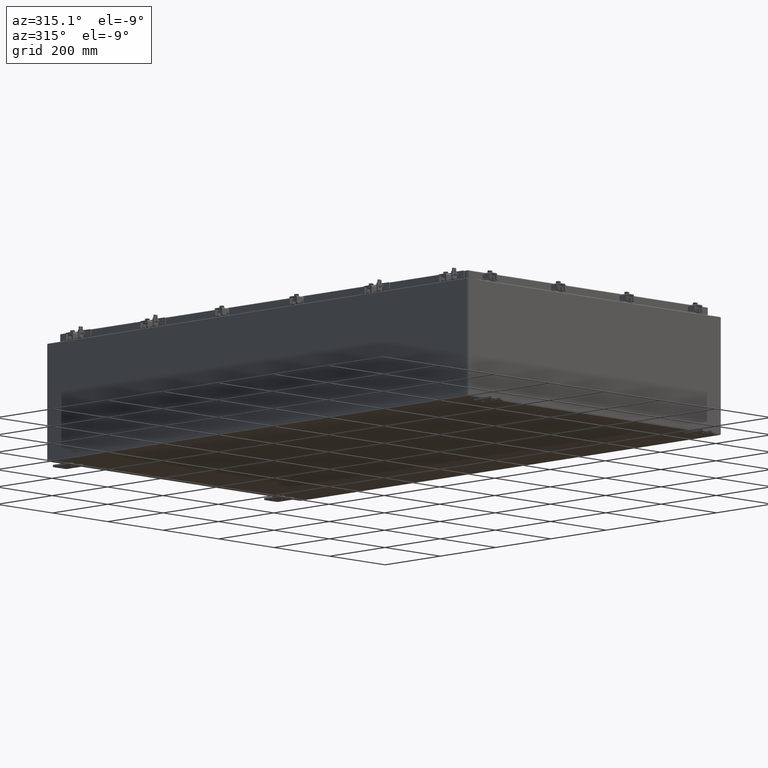
[diagram: clean part render]
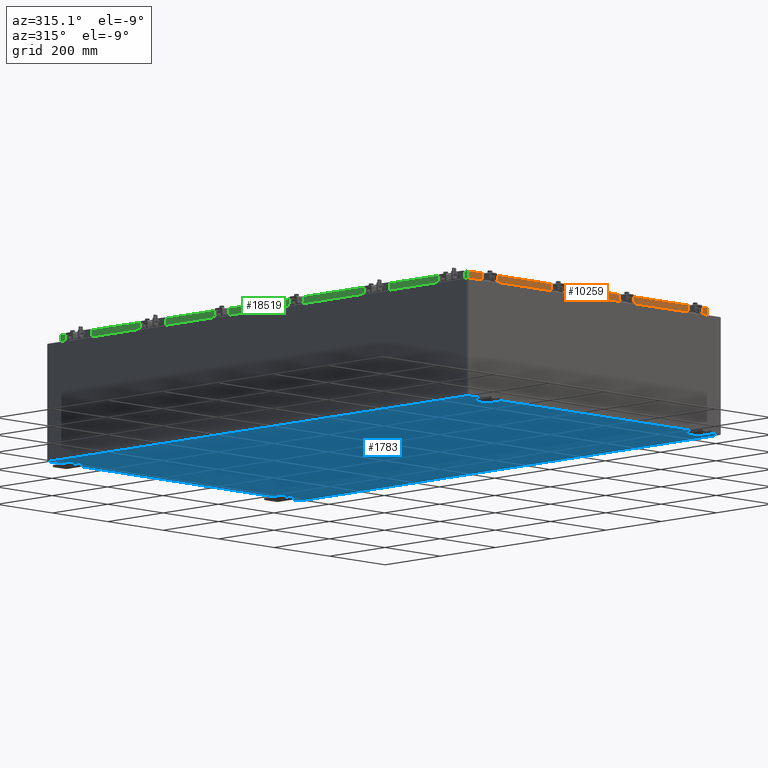
[diagram: same view with three faces highlighted in distinct colors, each labeled with its STEP entity id]
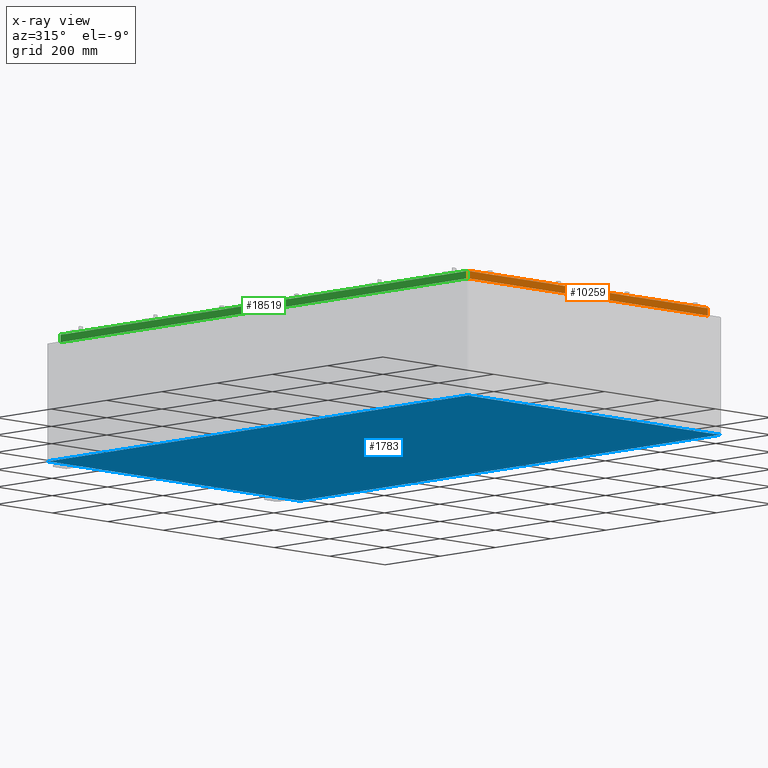
[diagram: x-ray of the same camera — body ghosted, the three highlighted faces saturated]
A machine part, auxiliary view with three faces highlighted in distinct colors.
The next image is the same camera in x-ray (body ghosted, the three faces saturated) — at least one of them is partly hidden behind the body in this view.
Their STEP definitions:

[orange] entity #10259 — the highlighted planar face has unit normal (-0, 1, -0).
#173 = VERTEX_POINT ( 'NONE', #9659 ) ;
#225 = EDGE_LOOP ( 'NONE', ( #10583, #16335, #232, #18403, #7157, #8014 ) ) ;
#232 = ORIENTED_EDGE ( 'NONE', *, *, #1973, .F. ) ;
#751 = EDGE_CURVE ( 'NONE', #1170, #173, #25907, .T. ) ;
#1104 = CARTESIAN_POINT ( 'NONE',  ( 17.07800000000000700, -29.09400000000000800, -0.8499999999999996400 ) ) ;
#1170 = VERTEX_POINT ( 'NONE', #14729 ) ;
#1832 = CARTESIAN_POINT ( 'NONE',  ( 2.033440117909724100E-029, -29.09400000000000500, 1.642858579540497200E-013 ) ) ;
#1973 = EDGE_CURVE ( 'NONE', #173, #26016, #26518, .T. ) ;
#2530 = VECTOR ( 'NONE', #3410, 39.37007874015748100 ) ;
#2819 = EDGE_CURVE ( 'NONE', #22099, #26016, #12813, .T. ) ;
#3410 = DIRECTION ( 'NONE',  ( -1.000000000000000000, -0.0000000000000000000, 1.239713195391617100E-016 ) ) ;
#4038 = EDGE_CURVE ( 'NONE', #21383, #11064, #4432, .T. ) ;
#4432 = LINE ( 'NONE', #27315, #9432 ) ;
#7116 = DIRECTION ( 'NONE',  ( -1.000000000000000000, 0.0000000000000000000, 0.0000000000000000000 ) ) ;
#7157 = ORIENTED_EDGE ( 'NONE', *, *, #9989, .F. ) ;
#8014 = ORIENTED_EDGE ( 'NONE', *, *, #4038, .F. ) ;
#9432 = VECTOR ( 'NONE', #12394, 39.37007874015748100 ) ;
#9659 = CARTESIAN_POINT ( 'NONE',  ( -16.23915786437626700, -29.09400000000000800, -0.8499999999999972000 ) ) ;
#9989 = EDGE_CURVE ( 'NONE', #11064, #1170, #20218, .T. ) ;
#10166 = CARTESIAN_POINT ( 'NONE',  ( -16.98915786437626400, -29.09400000000000500, 1.642858579540497200E-013 ) ) ;
#10259 = ADVANCED_FACE ( 'NONE', ( #19212 ), #23174, .F. ) ;
#10396 = DIRECTION ( 'NONE',  ( -6.989207801985715000E-031, 1.000000000000000000, -5.637761885544721100E-015 ) ) ;
#10583 = ORIENTED_EDGE ( 'NONE', *, *, #23637, .F. ) ;
#11064 = VERTEX_POINT ( 'NONE', #23510 ) ;
#11163 = CARTESIAN_POINT ( 'NONE',  ( -16.98915786437626400, -29.09400000000000500, -0.08769999999999547600 ) ) ;
#11469 = VECTOR ( 'NONE', #16587, 39.37007874015748100 ) ;
#11574 = AXIS2_PLACEMENT_3D ( 'NONE', #1832, #10396, #25302 ) ;
#11738 = VECTOR ( 'NONE', #11813, 39.37007874015748100 ) ;
#11813 = DIRECTION ( 'NONE',  ( 1.000000000000000000, 6.989207801985715000E-031, -3.922586267643549100E-045 ) ) ;
#12394 = DIRECTION ( 'NONE',  ( -0.0000000000000000000, -5.637761885544721800E-015, -1.000000000000000000 ) ) ;
#12813 = LINE ( 'NONE', #10166, #11469 ) ;
#14561 = VECTOR ( 'NONE', #7116, 39.37007874015748100 ) ;
#14729 = CARTESIAN_POINT ( 'NONE',  ( 16.23915786437626700, -29.09400000000000800, -0.8499999999999972000 ) ) ;
#15769 = CARTESIAN_POINT ( 'NONE',  ( -16.98915786437626400, -29.09400000000000800, -0.8499999999999954300 ) ) ;
#15976 = DIRECTION ( 'NONE',  ( -1.000000000000000000, -0.0000000000000000000, 1.239713195391617100E-016 ) ) ;
#16335 = ORIENTED_EDGE ( 'NONE', *, *, #2819, .T. ) ;
#16587 = DIRECTION ( 'NONE',  ( 0.0000000000000000000, -5.637761885544721800E-015, -1.000000000000000000 ) ) ;
#17418 = LINE ( 'NONE', #26624, #11738 ) ;
#18403 = ORIENTED_EDGE ( 'NONE', *, *, #751, .F. ) ;
#19212 = FACE_OUTER_BOUND ( 'NONE', #225, .T. ) ;
#20218 = LINE ( 'NONE', #1104, #20878 ) ;
#20878 = VECTOR ( 'NONE', #15976, 39.37007874015748100 ) ;
#21383 = VERTEX_POINT ( 'NONE', #25531 ) ;
#22099 = VERTEX_POINT ( 'NONE', #11163 ) ;
#23174 = PLANE ( 'NONE',  #11574 ) ;
#23510 = CARTESIAN_POINT ( 'NONE',  ( 16.98915786437627100, -29.09400000000000800, -0.8499999999999996400 ) ) ;
#23637 = EDGE_CURVE ( 'NONE', #22099, #21383, #17418, .T. ) ;
#24149 = CARTESIAN_POINT ( 'NONE',  ( 16.23915786437627100, -29.09400000000000800, -0.8499999999999972000 ) ) ;
#24642 = CARTESIAN_POINT ( 'NONE',  ( 17.07800000000000700, -29.09400000000000800, -0.8499999999999996400 ) ) ;
#25302 = DIRECTION ( 'NONE',  ( 0.0000000000000000000, 5.637761885544721100E-015, 1.000000000000000000 ) ) ;
#25531 = CARTESIAN_POINT ( 'NONE',  ( 16.98915786437627100, -29.09400000000000500, -0.08769999999999549000 ) ) ;
#25907 = LINE ( 'NONE', #24149, #14561 ) ;
#26016 = VERTEX_POINT ( 'NONE', #15769 ) ;
#26518 = LINE ( 'NONE', #24642, #2530 ) ;
#26624 = CARTESIAN_POINT ( 'NONE',  ( 17.07800000000000300, -29.09400000000000500, -0.08769999999999547600 ) ) ;
#27315 = CARTESIAN_POINT ( 'NONE',  ( 16.98915786437627100, -29.09400000000000500, -0.07469999999999958600 ) ) ;

[blue] entity #1783 — the highlighted planar face has unit normal (0, 0, -1).
#367 = DIRECTION ( 'NONE',  ( -1.000000000000000000, 0.0000000000000000000, -0.0000000000000000000 ) ) ;
#521 = ORIENTED_EDGE ( 'NONE', *, *, #19176, .T. ) ;
#680 = VECTOR ( 'NONE', #18634, 39.37007874015748100 ) ;
#1352 = LINE ( 'NONE', #18443, #6346 ) ;
#1758 = ORIENTED_EDGE ( 'NONE', *, *, #16495, .F. ) ;
#1783 = ADVANCED_FACE ( 'NONE', ( #2216 ), #10975, .T. ) ;
#2216 = FACE_OUTER_BOUND ( 'NONE', #5098, .T. ) ;
#3125 = VECTOR ( 'NONE', #23273, 39.37007874015748100 ) ;
#3535 = VERTEX_POINT ( 'NONE', #8357 ) ;
#3734 = CARTESIAN_POINT ( 'NONE',  ( -17.91230000000000200, -29.92530000000002100, -0.07469999999999994700 ) ) ;
#4316 = CARTESIAN_POINT ( 'NONE',  ( 17.91229999999999800, 29.92529999999999300, -0.07469999999999994700 ) ) ;
#4481 = LINE ( 'NONE', #8376, #3125 ) ;
#4484 = CARTESIAN_POINT ( 'NONE',  ( 17.91229999999999800, -29.92530000000001100, -0.07470000000000000300 ) ) ;
#5098 = EDGE_LOOP ( 'NONE', ( #7850, #521, #1758, #26967 ) ) ;
#6346 = VECTOR ( 'NONE', #9962, 39.37007874015748100 ) ;
#6753 = VERTEX_POINT ( 'NONE', #4316 ) ;
#7216 = EDGE_CURVE ( 'NONE', #6753, #11719, #1352, .T. ) ;
#7850 = ORIENTED_EDGE ( 'NONE', *, *, #18087, .F. ) ;
#8357 = CARTESIAN_POINT ( 'NONE',  ( -17.91230000000000200, 29.92529999999998600, -0.07470000000000000300 ) ) ;
#8376 = CARTESIAN_POINT ( 'NONE',  ( -18.00000000000000400, 29.92529999999998900, -0.07470000000000000300 ) ) ;
#8768 = DIRECTION ( 'NONE',  ( 0.0000000000000000000, 0.0000000000000000000, -1.000000000000000000 ) ) ;
#9531 = VERTEX_POINT ( 'NONE', #20861 ) ;
#9962 = DIRECTION ( 'NONE',  ( -0.0000000000000000000, -1.000000000000000000, -0.0000000000000000000 ) ) ;
#10667 = LINE ( 'NONE', #3734, #680 ) ;
#10975 = PLANE ( 'NONE',  #22410 ) ;
#11175 = DIRECTION ( 'NONE',  ( 1.000000000000000000, 0.0000000000000000000, 0.0000000000000000000 ) ) ;
#11719 = VERTEX_POINT ( 'NONE', #4484 ) ;
#13114 = CARTESIAN_POINT ( 'NONE',  ( 0.0000000000000000000, 0.0000000000000000000, -0.07470000000000000300 ) ) ;
#15712 = VECTOR ( 'NONE', #11175, 39.37007874015748100 ) ;
#16495 = EDGE_CURVE ( 'NONE', #6753, #3535, #4481, .T. ) ;
#17503 = CARTESIAN_POINT ( 'NONE',  ( -18.00000000000000400, -29.92530000000001100, -0.07470000000000000300 ) ) ;
#18087 = EDGE_CURVE ( 'NONE', #9531, #11719, #21400, .T. ) ;
#18443 = CARTESIAN_POINT ( 'NONE',  ( 17.91229999999999800, 29.92529999999999300, -0.07469999999999994700 ) ) ;
#18634 = DIRECTION ( 'NONE',  ( -0.0000000000000000000, 1.000000000000000000, -0.0000000000000000000 ) ) ;
#19176 = EDGE_CURVE ( 'NONE', #9531, #3535, #10667, .T. ) ;
#20861 = CARTESIAN_POINT ( 'NONE',  ( -17.91230000000000200, -29.92530000000001100, -0.07469999999999994700 ) ) ;
#21400 = LINE ( 'NONE', #17503, #15712 ) ;
#22410 = AXIS2_PLACEMENT_3D ( 'NONE', #13114, #8768, #367 ) ;
#23273 = DIRECTION ( 'NONE',  ( -1.000000000000000000, -0.0000000000000000000, -0.0000000000000000000 ) ) ;
#26967 = ORIENTED_EDGE ( 'NONE', *, *, #7216, .T. ) ;

[green] entity #18519 — the highlighted planar face has unit normal (1, 0, -0).
#118 = LINE ( 'NONE', #18654, #21425 ) ;
#1161 = DIRECTION ( 'NONE',  ( 1.000000000000000000, 3.374737631835138300E-031, -2.818880942772360100E-015 ) ) ;
#1668 = VERTEX_POINT ( 'NONE', #12837 ) ;
#2586 = CARTESIAN_POINT ( 'NONE',  ( -17.07799999999999900, -29.09400000000000500, -0.8499999999999996400 ) ) ;
#2675 = VECTOR ( 'NONE', #5153, 39.37007874015748100 ) ;
#3344 = DIRECTION ( 'NONE',  ( -2.818880942772360100E-015, 6.982962677686265900E-015, -1.000000000000000000 ) ) ;
#3837 = CARTESIAN_POINT ( 'NONE',  ( -17.07799999999998500, -28.25515786437626500, -0.8500000000000017500 ) ) ;
#3993 = EDGE_CURVE ( 'NONE', #5962, #1668, #118, .T. ) ;
#4958 = ORIENTED_EDGE ( 'NONE', *, *, #25722, .T. ) ;
#5153 = DIRECTION ( 'NONE',  ( -0.0000000000000000000, 1.000000000000000000, -0.0000000000000000000 ) ) ;
#5731 = LINE ( 'NONE', #2586, #10736 ) ;
#5962 = VERTEX_POINT ( 'NONE', #16082 ) ;
#6204 = CARTESIAN_POINT ( 'NONE',  ( -17.07799999999999600, 29.00515786437626500, 2.509435972240157400E-013 ) ) ;
#6867 = DIRECTION ( 'NONE',  ( 4.379057701015054300E-047, 1.000000000000000000, 1.197190551977018000E-016 ) ) ;
#7180 = ORIENTED_EDGE ( 'NONE', *, *, #26924, .F. ) ;
#8037 = DIRECTION ( 'NONE',  ( 3.374737631835139200E-031, -1.000000000000000000, -9.198750492177080800E-046 ) ) ;
#8358 = LINE ( 'NONE', #13612, #2675 ) ;
#8421 = CARTESIAN_POINT ( 'NONE',  ( -17.07799999999999900, 29.00515786437627200, -0.8499999999999927600 ) ) ;
#9326 = VECTOR ( 'NONE', #18969, 39.37007874015748100 ) ;
#9954 = AXIS2_PLACEMENT_3D ( 'NONE', #13913, #1161, #16041 ) ;
#10038 = ORIENTED_EDGE ( 'NONE', *, *, #24482, .F. ) ;
#10736 = VECTOR ( 'NONE', #6867, 39.37007874015748100 ) ;
#10914 = ORIENTED_EDGE ( 'NONE', *, *, #18985, .F. ) ;
#12025 = VECTOR ( 'NONE', #21176, 39.37007874015748100 ) ;
#12837 = CARTESIAN_POINT ( 'NONE',  ( -17.07799999999999600, -29.00515786437627600, -0.08770000000000007000 ) ) ;
#12918 = VECTOR ( 'NONE', #3344, 39.37007874015748100 ) ;
#13612 = CARTESIAN_POINT ( 'NONE',  ( -17.07799999999998500, -28.25515786437626500, -0.8500000000000017500 ) ) ;
#13760 = ORIENTED_EDGE ( 'NONE', *, *, #3993, .F. ) ;
#13913 = CARTESIAN_POINT ( 'NONE',  ( -17.07799999999999600, -5.763376927648048400E-030, 4.840166239667793400E-014 ) ) ;
#14820 = CARTESIAN_POINT ( 'NONE',  ( -17.07799999999999900, -29.00515786437626500, -0.8499999999999996400 ) ) ;
#15776 = VERTEX_POINT ( 'NONE', #14820 ) ;
#16041 = DIRECTION ( 'NONE',  ( -2.818880942772360100E-015, 0.0000000000000000000, -1.000000000000000000 ) ) ;
#16082 = CARTESIAN_POINT ( 'NONE',  ( -17.07799999999999600, 29.00515786437626500, -0.08770000000000007000 ) ) ;
#16974 = CARTESIAN_POINT ( 'NONE',  ( -17.07799999999999900, -29.09400000000000500, -0.8499999999999996400 ) ) ;
#18376 = LINE ( 'NONE', #16974, #12025 ) ;
#18519 = ADVANCED_FACE ( 'NONE', ( #24030 ), #24528, .F. ) ;
#18654 = CARTESIAN_POINT ( 'NONE',  ( -17.07799999999999600, -29.09400000000000500, -0.08770000000000007000 ) ) ;
#18969 = DIRECTION ( 'NONE',  ( -2.818880942772360100E-015, 6.982962677686265900E-015, -1.000000000000000000 ) ) ;
#18985 = EDGE_CURVE ( 'NONE', #26335, #26060, #8358, .T. ) ;
#20060 = CARTESIAN_POINT ( 'NONE',  ( -17.07799999999998500, 28.25515786437626500, -0.8500000000000017500 ) ) ;
#21176 = DIRECTION ( 'NONE',  ( 4.379057701015054300E-047, 1.000000000000000000, 1.197190551977018000E-016 ) ) ;
#21425 = VECTOR ( 'NONE', #8037, 39.37007874015748100 ) ;
#21605 = ORIENTED_EDGE ( 'NONE', *, *, #23987, .F. ) ;
#22455 = CARTESIAN_POINT ( 'NONE',  ( -17.07799999999999600, -29.00515786437627200, -0.07469999999999978000 ) ) ;
#23987 = EDGE_CURVE ( 'NONE', #15776, #26335, #5731, .T. ) ;
#24030 = FACE_OUTER_BOUND ( 'NONE', #27142, .T. ) ;
#24238 = LINE ( 'NONE', #22455, #12918 ) ;
#24458 = VERTEX_POINT ( 'NONE', #8421 ) ;
#24482 = EDGE_CURVE ( 'NONE', #26060, #24458, #18376, .T. ) ;
#24528 = PLANE ( 'NONE',  #9954 ) ;
#25722 = EDGE_CURVE ( 'NONE', #5962, #24458, #26300, .T. ) ;
#26060 = VERTEX_POINT ( 'NONE', #20060 ) ;
#26300 = LINE ( 'NONE', #6204, #9326 ) ;
#26335 = VERTEX_POINT ( 'NONE', #3837 ) ;
#26924 = EDGE_CURVE ( 'NONE', #1668, #15776, #24238, .T. ) ;
#27142 = EDGE_LOOP ( 'NONE', ( #13760, #4958, #10038, #10914, #21605, #7180 ) ) ;